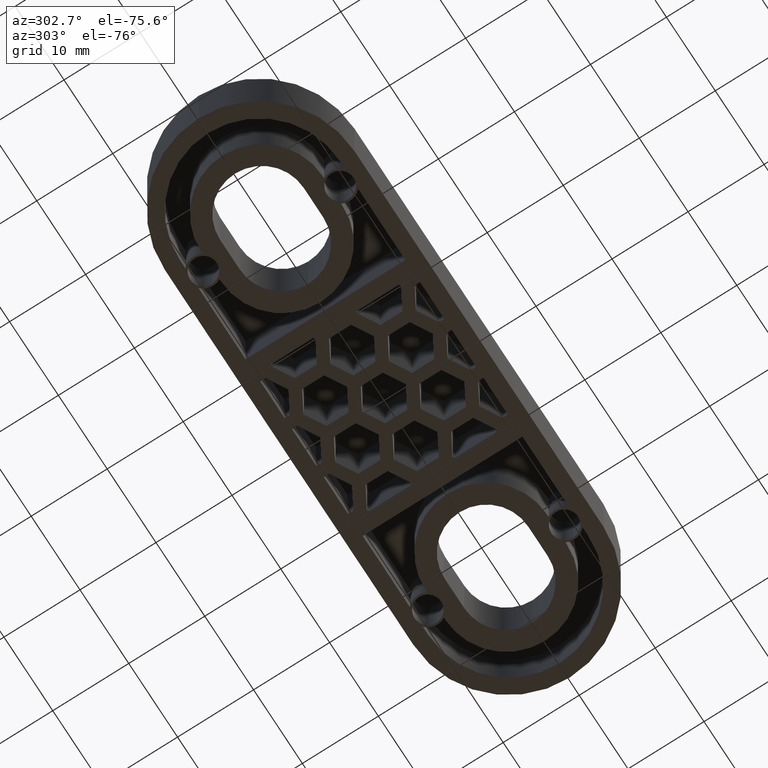
[diagram: clean part render]
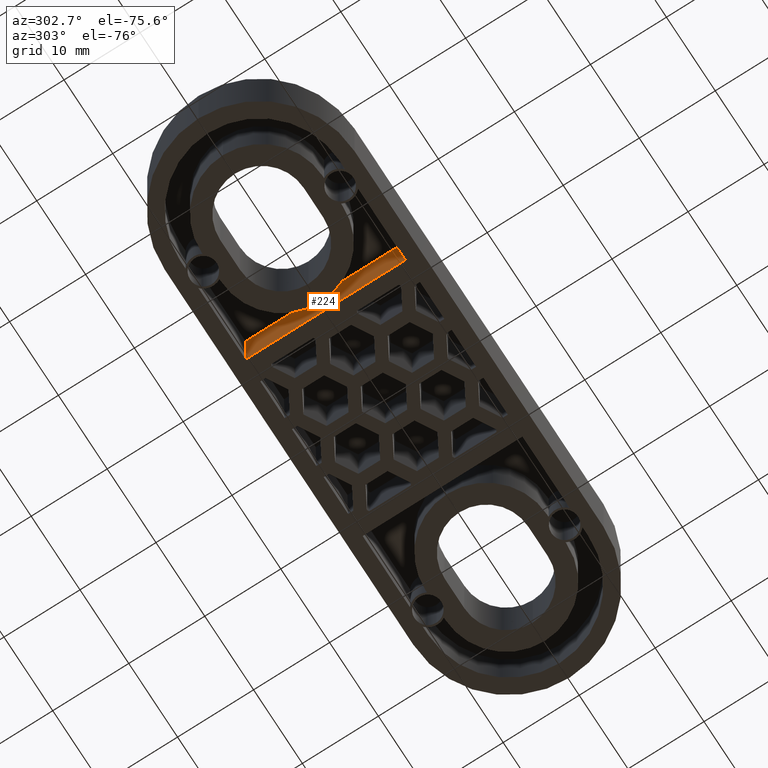
[diagram: same view with one face highlighted and labeled with its STEP entity id]
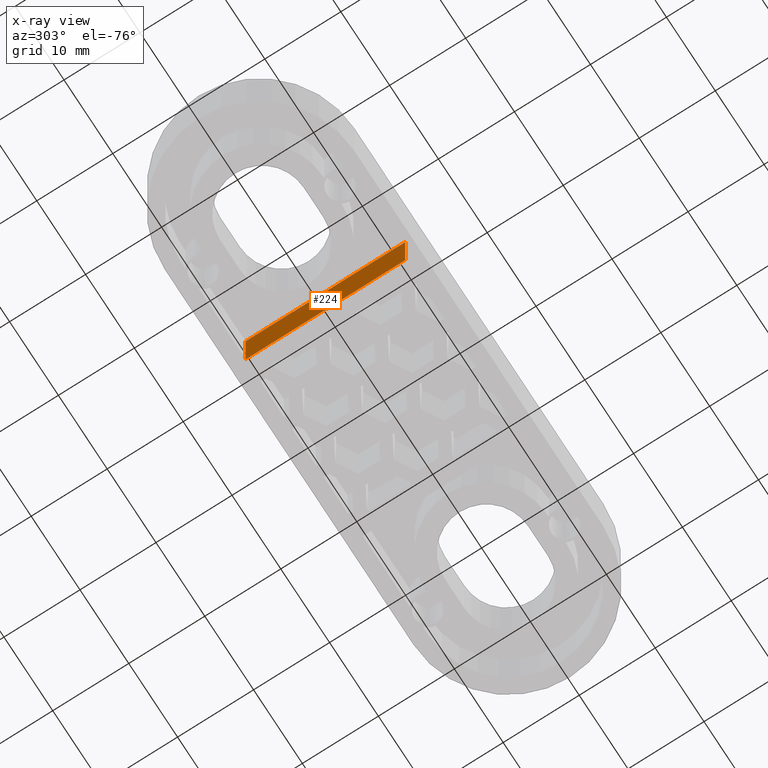
[diagram: x-ray of the same camera — body ghosted, the highlighted face saturated]
A machine part, auxiliary view. The second image highlights one B-rep face of the part: STEP entity #224.
The next image is the same camera in x-ray: the body ghosted, the highlighted face saturated — about 0% of this face is hidden behind the body in this view.
In plain terms, the highlighted planar face has unit normal (-1, 0, 0).
Its self-contained STEP definition (entity closure, byte-faithful):
#224 = ADVANCED_FACE( '', ( #632 ), #633, .T. );
#632 = FACE_OUTER_BOUND( '', #1114, .T. );
#633 = PLANE( '', #1115 );
#1114 = EDGE_LOOP( '', ( #2539, #2540, #2541, #2542 ) );
#1115 = AXIS2_PLACEMENT_3D( '', #2543, #2544, #2545 );
#2539 = ORIENTED_EDGE( '', *, *, #3163, .T. );
#2540 = ORIENTED_EDGE( '', *, *, #3142, .F. );
#2541 = ORIENTED_EDGE( '', *, *, #3140, .F. );
#2542 = ORIENTED_EDGE( '', *, *, #3195, .F. );
#2543 = CARTESIAN_POINT( '', ( -11.9999999999999, 10.4999999999999, -7.99999999991630 ) );
#2544 = DIRECTION( '', ( -1.00000000000000, 0.000000000000000, 0.000000000000000 ) );
#2545 = DIRECTION( '', ( 0.000000000000000, 1.00000000000000, -6.12303176911189E-017 ) );
#3140 = EDGE_CURVE( '', #3794, #3790, #3796, .T. );
#3142 = EDGE_CURVE( '', #3790, #3799, #3800, .T. );
#3163 = EDGE_CURVE( '', #3833, #3799, #3836, .T. );
#3195 = EDGE_CURVE( '', #3833, #3794, #3882, .T. );
#3790 = VERTEX_POINT( '', #4793 );
#3794 = VERTEX_POINT( '', #4799 );
#3796 = LINE( '', #4802, #4803 );
#3799 = VERTEX_POINT( '', #4806 );
#3800 = LINE( '', #4807, #4808 );
#3833 = VERTEX_POINT( '', #4856 );
#3836 = LINE( '', #4861, #4862 );
#3882 = LINE( '', #4915, #4916 );
#4793 = CARTESIAN_POINT( '', ( -11.9999999999999, 10.4999999999999, 7.99999999999999 ) );
#4799 = CARTESIAN_POINT( '', ( -11.9999999999999, 10.4999999999999, -6.42918335756739E-016 ) );
#4802 = CARTESIAN_POINT( '', ( -11.9999999999999, 10.4999999999999, -7.99999999991630 ) );
#4803 = VECTOR( '', #6080, 1000.00000000000 );
#4806 = CARTESIAN_POINT( '', ( -11.9999999999999, -10.5000000000000, 7.99999999999999 ) );
#4807 = CARTESIAN_POINT( '', ( -11.9999999999999, 10.4999999999999, 7.99999999999999 ) );
#4808 = VECTOR( '', #6084, 1000.00000000000 );
#4856 = CARTESIAN_POINT( '', ( -11.9999999999999, -10.5000000000000, 6.42918335756749E-016 ) );
#4861 = CARTESIAN_POINT( '', ( -11.9999999999999, -10.5000000000000, -7.99999999991630 ) );
#4862 = VECTOR( '', #6111, 1000.00000000000 );
#4915 = CARTESIAN_POINT( '', ( -11.9999999999999, -8.67361737988404E-015, 5.31088347701510E-031 ) );
#4916 = VECTOR( '', #6191, 1000.00000000000 );
#6080 = DIRECTION( '', ( 0.000000000000000, 6.12303176911189E-017, 1.00000000000000 ) );
#6084 = DIRECTION( '', ( 0.000000000000000, -1.00000000000000, 6.12303176911189E-017 ) );
#6111 = DIRECTION( '', ( 0.000000000000000, 6.12303176911189E-017, 1.00000000000000 ) );
#6191 = DIRECTION( '', ( 0.000000000000000, 1.00000000000000, -6.12303176911189E-017 ) );